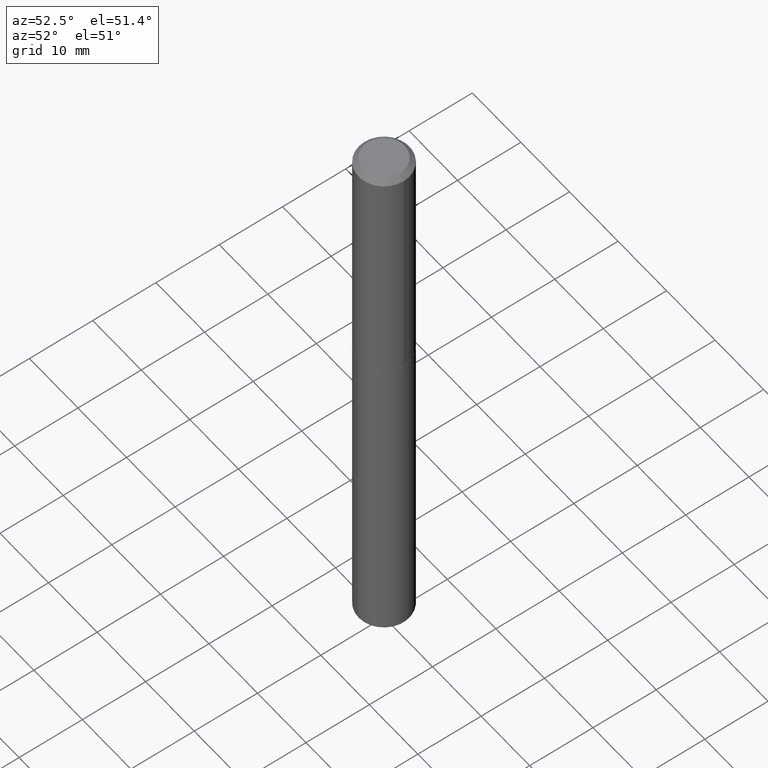
[diagram: clean part render]
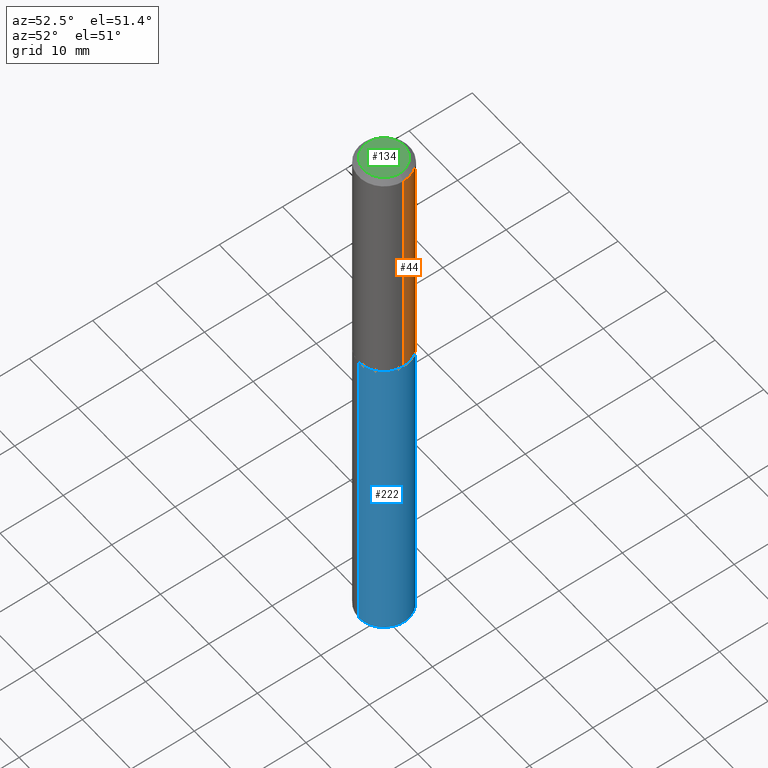
[diagram: same view with three faces highlighted in distinct colors, each labeled with its STEP entity id]
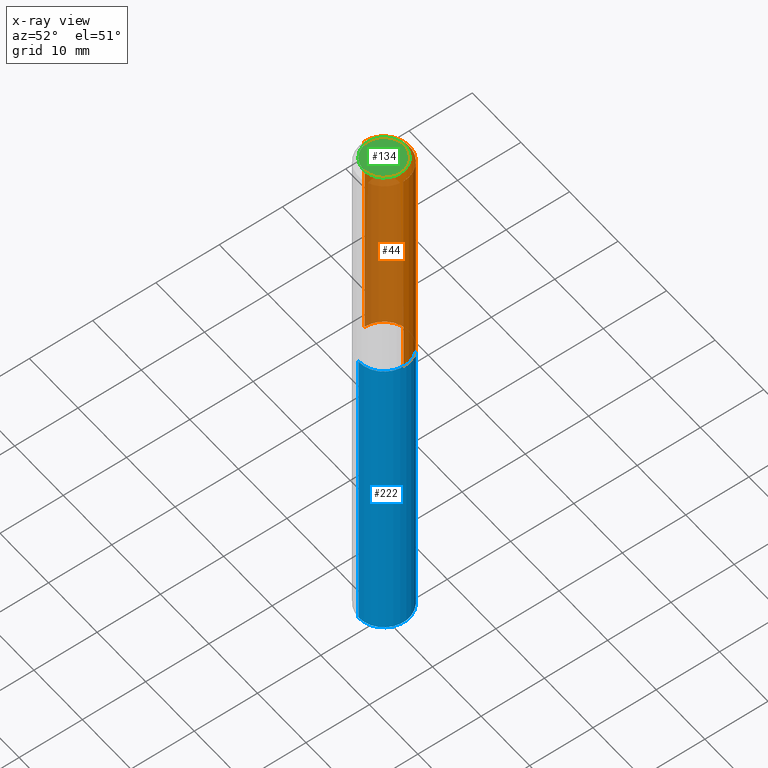
[diagram: x-ray of the same camera — body ghosted, the three highlighted faces saturated]
A machine part, auxiliary view with three faces highlighted in distinct colors.
The next image is the same camera in x-ray (body ghosted, the three faces saturated) — at least one of them is partly hidden behind the body in this view.
Their STEP definitions:

[orange] entity #44 — the highlighted cylindrical surface (edge-blend (fillet) strip) has radius 4.0005 mm, axis along (-0, 0, 1).
#7 = DIRECTION ( 'NONE',  ( 1.000000000000000000, -6.982962677686267499E-15, 0.000000000000000000 ) ) ;
#13 = CARTESIAN_POINT ( 'NONE',  ( 7.642090019328602662E-31, -1.091087918388490267E-16, -0.03125000000000020817 ) ) ;
#24 = VERTEX_POINT ( 'NONE', #349 ) ;
#25 = AXIS2_PLACEMENT_3D ( 'NONE', #87, #60, #300 ) ;
#31 = EDGE_CURVE ( 'NONE', #325, #24, #147, .T. ) ;
#44 = ADVANCED_FACE ( 'NONE', ( #328 ), #78, .T. ) ;
#46 = ORIENTED_EDGE ( 'NONE', *, *, #31, .F. ) ;
#54 = DIRECTION ( 'NONE',  ( -2.445468806185136877E-29, 3.491481338843145188E-15, 1.000000000000000000 ) ) ;
#60 = DIRECTION ( 'NONE',  ( -2.445468806185136597E-29, 3.491481338843145583E-15, 1.000000000000000000 ) ) ;
#69 = DIRECTION ( 'NONE',  ( -2.445468806185136877E-29, 3.491481338843145188E-15, 1.000000000000000000 ) ) ;
#78 = CYLINDRICAL_SURFACE ( 'NONE', #25, 0.1575000000000000844 ) ;
#87 = CARTESIAN_POINT ( 'NONE',  ( 0.000000000000000000, 0.000000000000000000, 0.000000000000000000 ) ) ;
#124 = CARTESIAN_POINT ( 'NONE',  ( -0.1575000000000001676, -4.103802125953303455E-15, -1.495900000000000230 ) ) ;
#140 = CARTESIAN_POINT ( 'NONE',  ( -0.1575000000000000844, 1.119104808822158392E-15, -7.747322767151481189E-30 ) ) ;
#147 = LINE ( 'NONE', #268, #240 ) ;
#158 = EDGE_CURVE ( 'NONE', #325, #217, #317, .T. ) ;
#194 = LINE ( 'NONE', #140, #379 ) ;
#196 = VERTEX_POINT ( 'NONE', #302 ) ;
#201 = EDGE_LOOP ( 'NONE', ( #322, #291, #320, #46 ) ) ;
#213 = CIRCLE ( 'NONE', #258, 0.1575000000000000011 ) ;
#217 = VERTEX_POINT ( 'NONE', #124 ) ;
#240 = VECTOR ( 'NONE', #54, 39.37007874015748143 ) ;
#249 = DIRECTION ( 'NONE',  ( -2.445468806185136597E-29, 3.491481338843145583E-15, 1.000000000000000000 ) ) ;
#257 = CARTESIAN_POINT ( 'NONE',  ( 0.1575000000000001676, -6.322723556511050117E-15, -1.495900000000000230 ) ) ;
#258 = AXIS2_PLACEMENT_3D ( 'NONE', #13, #278, #312 ) ;
#268 = CARTESIAN_POINT ( 'NONE',  ( 0.1575000000000000844, -1.099816621735587677E-15, 7.679978421878603638E-30 ) ) ;
#278 = DIRECTION ( 'NONE',  ( -2.445468806185136597E-29, 3.491481338843145583E-15, 1.000000000000000000 ) ) ;
#279 = AXIS2_PLACEMENT_3D ( 'NONE', #303, #249, #7 ) ;
#291 = ORIENTED_EDGE ( 'NONE', *, *, #361, .T. ) ;
#300 = DIRECTION ( 'NONE',  ( 1.000000000000000000, -6.982962677686267499E-15, 4.876176775795936353E-29 ) ) ;
#302 = CARTESIAN_POINT ( 'NONE',  ( -0.1575000000000000011, -1.546903054484996885E-15, -0.03125000000000020817 ) ) ;
#303 = CARTESIAN_POINT ( 'NONE',  ( 3.658176787172346501E-29, -5.222906934775461847E-15, -1.495900000000000230 ) ) ;
#312 = DIRECTION ( 'NONE',  ( 1.000000000000000000, -6.982962677686265922E-15, 0.000000000000000000 ) ) ;
#317 = CIRCLE ( 'NONE', #279, 0.1575000000000001676 ) ;
#320 = ORIENTED_EDGE ( 'NONE', *, *, #327, .F. ) ;
#322 = ORIENTED_EDGE ( 'NONE', *, *, #158, .T. ) ;
#325 = VERTEX_POINT ( 'NONE', #257 ) ;
#327 = EDGE_CURVE ( 'NONE', #24, #196, #213, .T. ) ;
#328 = FACE_OUTER_BOUND ( 'NONE', #201, .T. ) ;
#349 = CARTESIAN_POINT ( 'NONE',  ( 0.1575000000000000011, -1.208925413574435989E-15, -0.03125000000000020817 ) ) ;
#361 = EDGE_CURVE ( 'NONE', #217, #196, #194, .T. ) ;
#379 = VECTOR ( 'NONE', #69, 39.37007874015748143 ) ;

[blue] entity #222 — the highlighted cylindrical surface (edge-blend (fillet) strip) has radius 4.0005 mm, axis along (-0, 0, 1).
#2 = DIRECTION ( 'NONE',  ( -6.982962677686264344E-15, -1.000000000000000000, 3.469013325287953293E-15 ) ) ;
#3 = LINE ( 'NONE', #301, #84 ) ;
#6 = VECTOR ( 'NONE', #307, 39.37007874015748143 ) ;
#14 = VERTEX_POINT ( 'NONE', #298 ) ;
#45 = DIRECTION ( 'NONE',  ( -6.982962677686264344E-15, -1.000000000000000000, 3.469013325287953293E-15 ) ) ;
#56 = AXIS2_PLACEMENT_3D ( 'NONE', #306, #364, #2 ) ;
#72 = CARTESIAN_POINT ( 'NONE',  ( 8.612685328676626713E-29, -1.229008403849446486E-14, -3.520959100090646832 ) ) ;
#84 = VECTOR ( 'NONE', #129, 39.37007874015748143 ) ;
#86 = EDGE_LOOP ( 'NONE', ( #136, #264, #281, #122 ) ) ;
#91 = CIRCLE ( 'NONE', #236, 0.1575000000000000011 ) ;
#98 = EDGE_CURVE ( 'NONE', #149, #14, #3, .T. ) ;
#99 = DIRECTION ( 'NONE',  ( -2.446599759364599992E-29, 3.489861749520296398E-15, 1.000000000000000000 ) ) ;
#117 = VERTEX_POINT ( 'NONE', #220 ) ;
#122 = ORIENTED_EDGE ( 'NONE', *, *, #98, .F. ) ;
#123 = CARTESIAN_POINT ( 'NONE',  ( -1.099816621735500311E-15, -0.1575000000000122136, -3.520959100090645943 ) ) ;
#129 = DIRECTION ( 'NONE',  ( -2.446599759364599712E-29, 3.489861749520296793E-15, 1.000000000000000000 ) ) ;
#132 = CARTESIAN_POINT ( 'NONE',  ( 1.119104808822194088E-15, 0.1574999999999947553, -1.496400000000000841 ) ) ;
#136 = ORIENTED_EDGE ( 'NONE', *, *, #385, .T. ) ;
#149 = VERTEX_POINT ( 'NONE', #123 ) ;
#165 = LINE ( 'NONE', #132, #6 ) ;
#199 = CIRCLE ( 'NONE', #56, 0.1575000000000000011 ) ;
#200 = DIRECTION ( 'NONE',  ( -2.446599759364599992E-29, 3.489861749520296398E-15, 1.000000000000000000 ) ) ;
#214 = EDGE_CURVE ( 'NONE', #14, #266, #199, .T. ) ;
#220 = CARTESIAN_POINT ( 'NONE',  ( 1.119104808822243392E-15, 0.1574999999999876776, -3.520959100090647276 ) ) ;
#222 = ADVANCED_FACE ( 'NONE', ( #243 ), #283, .T. ) ;
#225 = CARTESIAN_POINT ( 'NONE',  ( 3.659399521575438742E-29, -5.224652675444883351E-15, -1.496400000000000174 ) ) ;
#231 = EDGE_CURVE ( 'NONE', #117, #266, #165, .T. ) ;
#236 = AXIS2_PLACEMENT_3D ( 'NONE', #72, #200, #313 ) ;
#243 = FACE_OUTER_BOUND ( 'NONE', #86, .T. ) ;
#253 = CARTESIAN_POINT ( 'NONE',  ( 1.119104808822244181E-15, 0.1574999999999947553, -1.496400000000000841 ) ) ;
#264 = ORIENTED_EDGE ( 'NONE', *, *, #231, .T. ) ;
#266 = VERTEX_POINT ( 'NONE', #253 ) ;
#274 = AXIS2_PLACEMENT_3D ( 'NONE', #225, #99, #45 ) ;
#281 = ORIENTED_EDGE ( 'NONE', *, *, #214, .F. ) ;
#283 = CYLINDRICAL_SURFACE ( 'NONE', #274, 0.1575000000000000011 ) ;
#298 = CARTESIAN_POINT ( 'NONE',  ( -1.099816621735550009E-15, -0.1575000000000052192, -1.496399999999999730 ) ) ;
#301 = CARTESIAN_POINT ( 'NONE',  ( -1.099816621735550009E-15, -0.1575000000000052192, -1.496399999999999730 ) ) ;
#306 = CARTESIAN_POINT ( 'NONE',  ( 3.659399521575438742E-29, -5.224652675444883351E-15, -1.496400000000000174 ) ) ;
#307 = DIRECTION ( 'NONE',  ( -2.446599759364599712E-29, 3.489861749520296793E-15, 1.000000000000000000 ) ) ;
#313 = DIRECTION ( 'NONE',  ( -6.982962677686264344E-15, -1.000000000000000000, 3.469013325287953293E-15 ) ) ;
#364 = DIRECTION ( 'NONE',  ( -2.446599759364599992E-29, 3.489861749520296398E-15, 1.000000000000000000 ) ) ;
#385 = EDGE_CURVE ( 'NONE', #149, #117, #91, .T. ) ;

[green] entity #134 — the highlighted planar face has unit normal (0, -0, -1).
#71 = CIRCLE ( 'NONE', #332, 0.1262499999999999734 ) ;
#92 = FACE_OUTER_BOUND ( 'NONE', #183, .T. ) ;
#95 = DIRECTION ( 'NONE',  ( 1.000000000000000000, -6.982962677686267499E-15, 4.876009584780190244E-29 ) ) ;
#134 = ADVANCED_FACE ( 'NONE', ( #92 ), #223, .F. ) ;
#150 = DIRECTION ( 'NONE',  ( -1.000000000000000000, 6.982962677686265922E-15, -4.876176775795935793E-29 ) ) ;
#151 = DIRECTION ( 'NONE',  ( 2.438088387897960049E-29, -3.491481338843145188E-15, -1.000000000000000000 ) ) ;
#175 = EDGE_CURVE ( 'NONE', #384, #211, #354, .T. ) ;
#183 = EDGE_LOOP ( 'NONE', ( #216, #295 ) ) ;
#187 = AXIS2_PLACEMENT_3D ( 'NONE', #218, #151, #150 ) ;
#211 = VERTEX_POINT ( 'NONE', #333 ) ;
#216 = ORIENTED_EDGE ( 'NONE', *, *, #175, .T. ) ;
#218 = CARTESIAN_POINT ( 'NONE',  ( -5.899826025441371921E-47, 8.423387948417036461E-33, 2.412554194320285406E-18 ) ) ;
#223 = PLANE ( 'NONE',  #187 ) ;
#227 = CARTESIAN_POINT ( 'NONE',  ( -0.1262499999999999734, 9.361534339773144209E-16, 4.825108388634215244E-18 ) ) ;
#247 = CARTESIAN_POINT ( 'NONE',  ( -1.179965205088274384E-46, 1.684677589683407292E-32, 4.825108388640570813E-18 ) ) ;
#295 = ORIENTED_EDGE ( 'NONE', *, *, #334, .T. ) ;
#332 = AXIS2_PLACEMENT_3D ( 'NONE', #343, #338, #339 ) ;
#333 = CARTESIAN_POINT ( 'NONE',  ( 0.1262499999999999734, -1.027887549353260543E-15, 4.825108388647246856E-18 ) ) ;
#334 = EDGE_CURVE ( 'NONE', #211, #384, #71, .T. ) ;
#338 = DIRECTION ( 'NONE',  ( -2.445468806185136597E-29, 3.491481338843145583E-15, 1.000000000000000000 ) ) ;
#339 = DIRECTION ( 'NONE',  ( 1.000000000000000000, -6.982962677686267499E-15, 4.876009584780190244E-29 ) ) ;
#341 = AXIS2_PLACEMENT_3D ( 'NONE', #247, #365, #95 ) ;
#343 = CARTESIAN_POINT ( 'NONE',  ( -1.179965205088274384E-46, 1.684677589683407292E-32, 4.825108388640570813E-18 ) ) ;
#354 = CIRCLE ( 'NONE', #341, 0.1262499999999999734 ) ;
#365 = DIRECTION ( 'NONE',  ( -2.445468806185136597E-29, 3.491481338843145583E-15, 1.000000000000000000 ) ) ;
#384 = VERTEX_POINT ( 'NONE', #227 ) ;